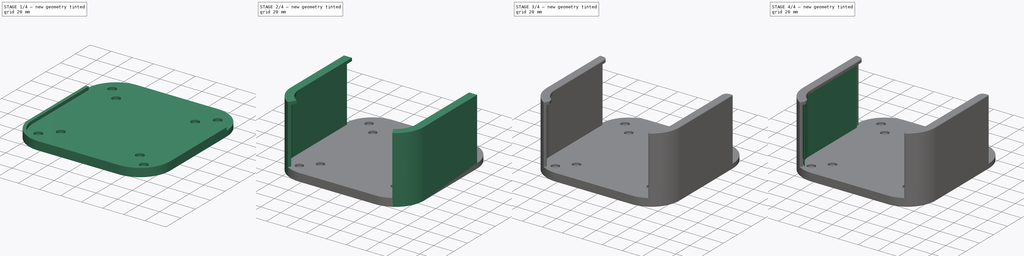
[diagram: build sequence overview — one tinted view per stage of 4, left to right]
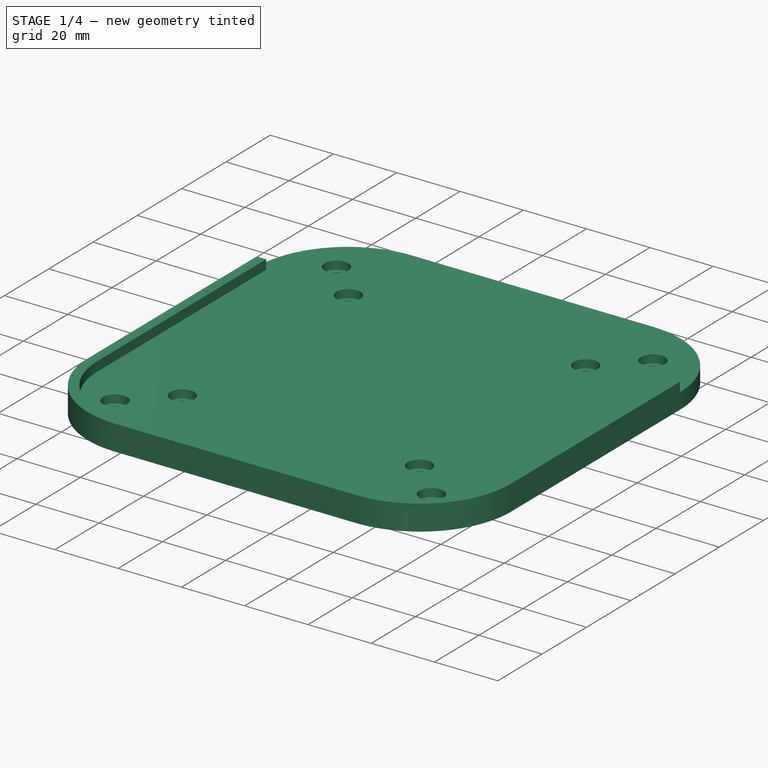
[diagram: stage 1 of 4 — iso view after this stage's code; geometry added in this stage tinted green]
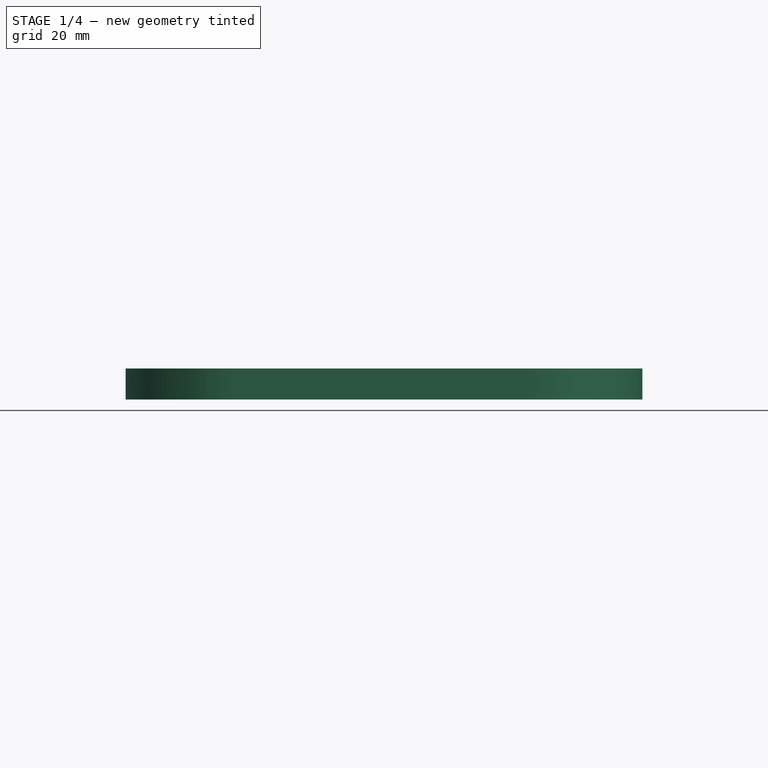
[diagram: stage 1 of 4 — front view after this stage's code; geometry added in this stage tinted green]
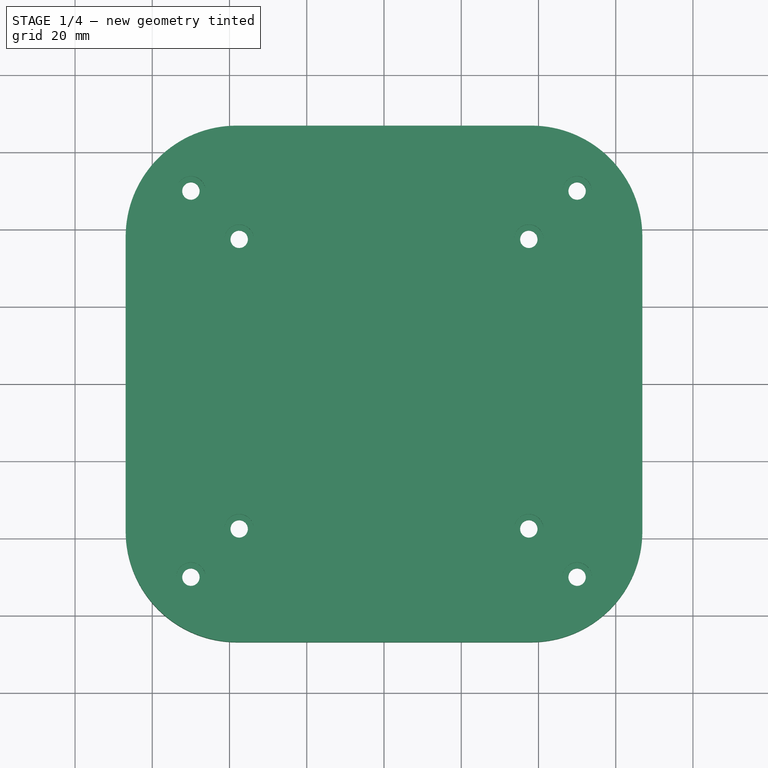
[diagram: stage 1 of 4 — top view after this stage's code; geometry added in this stage tinted green]
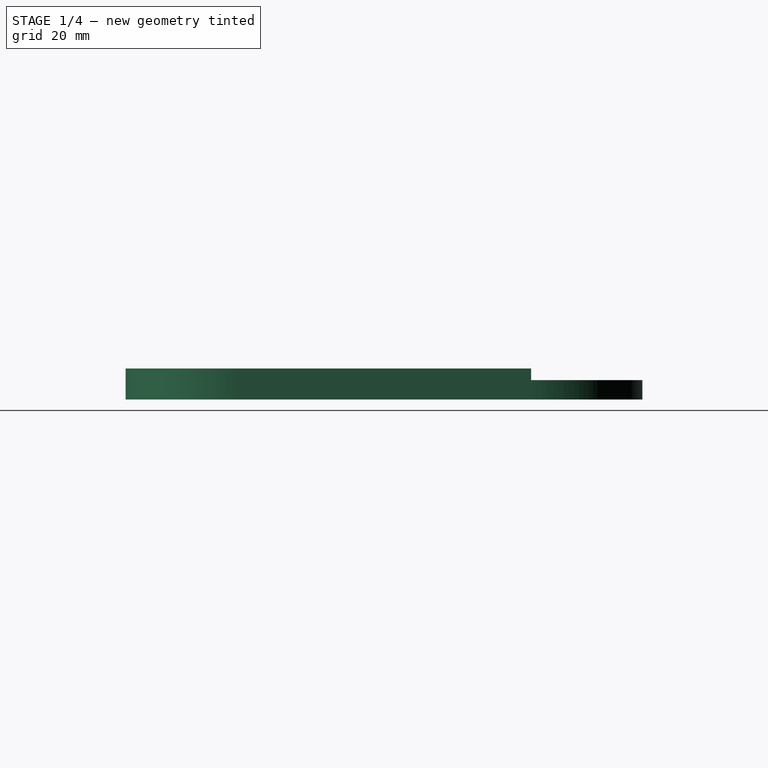
[diagram: stage 1 of 4 — right view after this stage's code; geometry added in this stage tinted green]
FCSTD DOCUMENT  (FreeCAD 1.0R39109 (Git))
Label: m4 mini vesa 100 mount
License: All rights reserved
LicenseURL: http://en.wikipedia.org/wiki/All_rights_reserved
objects: Sketcher::SketchObject×7, PartDesign::Pad×6, PartDesign::Mirrored×2, PartDesign::Fillet×2, App::FeaturePython×1, PartDesign::SubShapeBinder×1, PartDesign::Hole×1, PartDesign::Chamfer×1, PartDesign::Body×1
note: 50 computed .brp shape members not serialized (recipe doc carries the construction recipe); baked Part::Feature solids carry a one-line shape summary decoded from their .brp

FEATURE [App::FeaturePython] dd  # WARN: FeaturePython — macro-defined, semantics opaque (R4)
  BaseFloor = 5
  BaseWallHeight = 8
  BoxRadius = 25.4
  BoxWidth = 127
  ButtonDiameter = 11
  ButtonDistance = 67
  DynamicData = Created with DynamicData (v2.68) workbench. | This is a simple container object built | for holding custom properties.
  FanShroudHeight = 15
  FrictionFit = 0
  Fudge = 0.4
  HexSize = 5
  HexSpacing = 5
  HexThickness = 1.6
  MeshThickness = 0.5
  MiniHeight = 43
  RetainerThickness = 2
  RiserAngle = 0
  RiserHeight = 0
  RiserOuter = 114
  RiserTop = 97
  TopHeight = 12
  TopThickness = 1.6
  Wall = 3
  expr: HexThickness = TopThickness
FEATURE [Sketcher::SketchObject] Sketch005  label="master"
  ArcFitTolerance = 1e-06
  FullyConstrained = true
  MakeInternals = false
  MapMode = 5
  expr: Constraints[1] = dd.RiserOuter
  expr: Constraints[41] = dd.Wall
  expr: Constraints[5] = dd.ButtonDistance
  expr: Constraints[6] = dd.ButtonDiameter
  expr: Constraints[79] = dd.Fudge
  expr: Constraints[80] = dd.Wall
  expr: Constraints[81] = dd.RiserTop
  expr: Constraints[83] = dd.BoxRadius
  expr: Constraints[84] = dd.BoxWidth
  sketch-geometry (36):
    g0: Circle CenterX=2.8e-15 CenterY=3.4e-15 CenterZ=0 NormalX=0 NormalY=0 NormalZ=1 AngleXU=0 Radius=57
    g1: Circle CenterX=47.3762 CenterY=47.3762 CenterZ=0 NormalX=0 NormalY=0 NormalZ=1 AngleXU=0 Radius=5.5
    g2: LineSegment [constr] StartX=47.3762 StartY=47.3762 StartZ=0 EndX=2.8e-15 EndY=3.4e-15 EndZ=0
    g3: LineSegment StartX=-63.5 StartY=38.1 StartZ=0 EndX=-63.5 EndY=-38.1 EndZ=0
    g4: LineSegment StartX=-38.1 StartY=-63.5 StartZ=0 EndX=38.1 EndY=-63.5 EndZ=0
    g5: LineSegment StartX=63.5 StartY=-38.1 StartZ=0 EndX=63.5 EndY=38.1 EndZ=0
    g6: LineSegment StartX=38.1 StartY=63.5 StartZ=0 EndX=-38.1 EndY=63.5 EndZ=0
    g7: ArcOfCircle CenterX=-38.1 CenterY=38.1 CenterZ=0 NormalX=0 NormalY=0 NormalZ=1 AngleXU=0 Radius=25.4 StartAngle=1.5708 EndAngle=3.14159
    g8: ArcOfCircle CenterX=-38.1 CenterY=-38.1 CenterZ=0 NormalX=0 NormalY=0 NormalZ=1 AngleXU=0 Radius=25.4 StartAngle=3.14159 EndAngle=4.71239
    g9: ArcOfCircle CenterX=38.1 CenterY=-38.1 CenterZ=0 NormalX=0 NormalY=0 NormalZ=1 AngleXU=0 Radius=25.4 StartAngle=4.71239 EndAngle=6.28319
    g10: ArcOfCircle CenterX=38.1 CenterY=38.1 CenterZ=0 NormalX=0 NormalY=0 NormalZ=1 AngleXU=0 Radius=25.4 StartAngle=0 EndAngle=1.5708
    g11: LineSegment StartX=-60.5 StartY=38.1 StartZ=0 EndX=-60.5 EndY=-38.1 EndZ=0
    g12: LineSegment StartX=-38.1 StartY=-60.5 StartZ=0 EndX=38.1 EndY=-60.5 EndZ=0
    g13: LineSegment StartX=60.5 StartY=-38.1 StartZ=0 EndX=60.5 EndY=38.1 EndZ=0
    g14: LineSegment StartX=38.1 StartY=60.5 StartZ=0 EndX=-38.1 EndY=60.5 EndZ=0
    g15: ArcOfCircle CenterX=-38.1 CenterY=38.1 CenterZ=0 NormalX=0 NormalY=0 NormalZ=1 AngleXU=0 Radius=22.4 StartAngle=1.5708 EndAngle=3.14159
    g16: ArcOfCircle CenterX=-38.1 CenterY=-38.1 CenterZ=0 NormalX=0 NormalY=0 NormalZ=1 AngleXU=0 Radius=22.4 StartAngle=3.14159 EndAngle=4.71239
    g17: ArcOfCircle CenterX=38.1 CenterY=-38.1 CenterZ=0 NormalX=0 NormalY=0 NormalZ=1 AngleXU=0 Radius=22.4 StartAngle=4.71239 EndAngle=6.28319
    g18: ArcOfCircle CenterX=38.1 CenterY=38.1 CenterZ=0 NormalX=0 NormalY=0 NormalZ=1 AngleXU=0 Radius=22.4 StartAngle=1e-16 EndAngle=1.5708
    g19: Circle CenterX=2.8e-15 CenterY=3.4e-15 CenterZ=0 NormalX=0 NormalY=0 NormalZ=1 AngleXU=0 Radius=48.5
    g20: LineSegment StartX=-60.1 StartY=38.1 StartZ=0 EndX=-60.1 EndY=-38.1 EndZ=0
    g21: LineSegment StartX=-38.1 StartY=-60.1 StartZ=0 EndX=38.1 EndY=-60.1 EndZ=0
    g22: LineSegment StartX=60.1 StartY=-38.1 StartZ=0 EndX=60.1 EndY=38.1 EndZ=0
    g23: LineSegment StartX=38.1 StartY=60.1 StartZ=0 EndX=-38.1 EndY=60.1 EndZ=0
    g24: ArcOfCircle CenterX=-38.1 CenterY=38.1 CenterZ=0 NormalX=0 NormalY=0 NormalZ=1 AngleXU=0 Radius=22 StartAngle=1.5708 EndAngle=3.14159
    g25: ArcOfCircle CenterX=-38.1 CenterY=-38.1 CenterZ=0 NormalX=0 NormalY=0 NormalZ=1 AngleXU=0 Radius=22 StartAngle=3.14159 EndAngle=4.71239
    g26: ArcOfCircle CenterX=38.1 CenterY=-38.1 CenterZ=0 NormalX=0 NormalY=0 NormalZ=1 AngleXU=0 Radius=22 StartAngle=4.71239 EndAngle=6.28319
    g27: ArcOfCircle CenterX=38.1 CenterY=38.1 CenterZ=0 NormalX=0 NormalY=0 NormalZ=1 AngleXU=0 Radius=22 StartAngle=1e-16 EndAngle=1.5708
    g28: LineSegment StartX=-57.1 StartY=38.1 StartZ=0 EndX=-57.1 EndY=-38.1 EndZ=0
    g29: LineSegment StartX=-38.1 StartY=-57.1 StartZ=0 EndX=38.1 EndY=-57.1 EndZ=0
    g30: LineSegment StartX=57.1 StartY=-38.1 StartZ=0 EndX=57.1 EndY=38.1 EndZ=0
    g31: LineSegment StartX=38.1 StartY=57.1 StartZ=0 EndX=-38.1 EndY=57.1 EndZ=0
    g32: ArcOfCircle CenterX=-38.1 CenterY=38.1 CenterZ=0 NormalX=0 NormalY=0 NormalZ=1 AngleXU=0 Radius=19 StartAngle=1.5708 EndAngle=3.14159
    g33: ArcOfCircle CenterX=-38.1 CenterY=-38.1 CenterZ=0 NormalX=0 NormalY=0 NormalZ=1 AngleXU=0 Radius=19 StartAngle=3.14159 EndAngle=4.71239
    g34: ArcOfCircle CenterX=38.1 CenterY=-38.1 CenterZ=0 NormalX=0 NormalY=0 NormalZ=1 AngleXU=0 Radius=19 StartAngle=4.71239 EndAngle=6.28319
    g35: ArcOfCircle CenterX=38.1 CenterY=38.1 CenterZ=0 NormalX=0 NormalY=0 NormalZ=1 AngleXU=0 Radius=19 StartAngle=0 EndAngle=1.5708
  constraints (85):
    c: Coincident(g0,g-1)
    c: Diameter(g0) = 114
    c: Coincident(g2,g1)
    c: Coincident(g2,g0)
    c: Angle(g-1,g2) = 0.785398
    c: Distance(g2) = 67
    c: Diameter(g1) = 11
    c: Tangent(g3,g7) = -1.5708
    c: Tangent(g3,g8) = -1.5708
    c: Tangent(g4,g8) = -1.5708
    c: Tangent(g4,g9) = -1.5708
    c: Tangent(g5,g9) = -1.5708
    c: Tangent(g5,g10) = -1.5708
    c: Tangent(g6,g10) = -1.5708
    c: Tangent(g6,g7) = -1.5708
    c: Vertical(g3)
    c: Vertical(g5)
    c: Horizontal(g4)
    c: Horizontal(g6)
    c: Equal(g7,g8)
    c: Equal(g8,g9)
    c: Equal(g9,g10)
    c: Symmetric(g8,g10,g0)
    c: Equal(g6,g3)
    c: Tangent(g11,g15) = -1.5708
    c: Tangent(g11,g16) = -1.5708
    c: Tangent(g12,g16) = -1.5708
    c: Tangent(g12,g17) = -1.5708
    c: Tangent(g13,g17) = -1.5708
    c: Tangent(g13,g18) = -1.5708
    c: Tangent(g14,g18) = -1.5708
    c: Tangent(g14,g15) = -1.5708
    c: Vertical(g11)
    c: Vertical(g13)
    c: Horizontal(g12)
    c: Horizontal(g14)
    c: Equal(g15,g16)
    c: Equal(g16,g17)
    c: Equal(g17,g18)
    c: Symmetric(g16,g18,g0)
    c: Equal(g14,g11)
    c: DistanceY(g14,g6) = 3
    c: Coincident(g19,g0)
    c: Tangent(g20,g24) = -1.5708
    c: Tangent(g20,g25) = -1.5708
    c: Tangent(g21,g25) = -1.5708
    c: Tangent(g21,g26) = -1.5708
    c: Tangent(g22,g26) = -1.5708
    c: Tangent(g22,g27) = -1.5708
    c: Tangent(g23,g27) = -1.5708
    c: Tangent(g23,g24) = -1.5708
    c: Vertical(g20)
    c: Vertical(g22)
    c: Horizontal(g21)
    c: Horizontal(g23)
    c: Equal(g24,g25)
    c: Equal(g25,g26)
    c: Equal(g26,g27)
    c: Symmetric(g27,g25,g0)
    c: Equal(g23,g20)
    c: Vertical(g23,g14)
    c: Tangent(g28,g32) = -1.5708
    c: Tangent(g28,g33) = -1.5708
    c: Tangent(g29,g33) = -1.5708
    c: Tangent(g29,g34) = -1.5708
    c: Tangent(g30,g34) = -1.5708
    c: Tangent(g30,g35) = -1.5708
    c: Tangent(g31,g35) = -1.5708
    c: Tangent(g31,g32) = -1.5708
    c: Vertical(g28)
    c: Vertical(g30)
    c: Horizontal(g29)
    c: Horizontal(g31)
    c: Equal(g32,g33)
    c: Equal(g33,g34)
    c: Equal(g34,g35)
    c: Symmetric(g33,g35,g0)
    c: Equal(g30,g31)
    c: Vertical(g31,g23)
    c: DistanceY(g23,g14) = 0.4
    c: DistanceY(g31,g23) = 3
    c: Diameter(g19) = 97
    c: Vertical(g14,g6)
    c: Radius(g7) = 25.4
    c: DistanceX(g3,g5) = 127
FEATURE [PartDesign::SubShapeBinder] Binder
  BindCopyOnChange = 0
  BindMode = 0
  ClaimChildren = false
  Context = -> Body [Binder.]
  Fuse = false
  MakeFace = true
  OffsetFill = false
  OffsetIntersection = false
  OffsetJoinType = 0
  OffsetOpenResult = false
  PartialLoad = false
  Refine = true
  Relative = true
  Support = -> [Sketch005]
  _Version = 2
FEATURE [Sketcher::SketchObject] Sketch
  ArcFitTolerance = 1e-06
  AttachmentSupport = -> [XY_Plane]
  ExternalGeometry = -> [Binder]
  FullyConstrained = true
  MakeInternals = false
  MapMode = 5
  expr: Constraints[22] = dd.Fudge + dd.Wall
  sketch-geometry (26):
    g0: LineSegment StartX=-66.9 StartY=38.1 StartZ=0 EndX=-66.9 EndY=-38.1 EndZ=0
    g1: LineSegment StartX=-38.1 StartY=-66.9 StartZ=0 EndX=38.1 EndY=-66.9 EndZ=0
    g2: LineSegment StartX=66.9 StartY=-38.1 StartZ=0 EndX=66.9 EndY=38.1 EndZ=0
    g3: LineSegment StartX=38.1 StartY=66.9 StartZ=0 EndX=-38.1 EndY=66.9 EndZ=0
    g4: ArcOfCircle CenterX=-38.1 CenterY=38.1 CenterZ=0 NormalX=0 NormalY=0 NormalZ=1 AngleXU=0 Radius=28.8 StartAngle=1.5708 EndAngle=3.14159
    g5: ArcOfCircle CenterX=-38.1 CenterY=-38.1 CenterZ=0 NormalX=0 NormalY=0 NormalZ=1 AngleXU=0 Radius=28.8 StartAngle=3.14159 EndAngle=4.71239
    g6: ArcOfCircle CenterX=38.1 CenterY=-38.1 CenterZ=0 NormalX=0 NormalY=0 NormalZ=1 AngleXU=0 Radius=28.8 StartAngle=4.71239 EndAngle=6.28319
    g7: ArcOfCircle CenterX=38.1 CenterY=38.1 CenterZ=0 NormalX=0 NormalY=0 NormalZ=1 AngleXU=0 Radius=28.8 StartAngle=-1.87e-14 EndAngle=1.5708
    g8: GeomPoint [constr] X=-66.9 Y=66.9 Z=0
    g9: GeomPoint [constr] X=66.9 Y=-66.9 Z=0
    g10: LineSegment [constr] StartX=-50 StartY=50 StartZ=0 EndX=-50 EndY=-50 EndZ=0
    g11: LineSegment [constr] StartX=-50 StartY=-50 StartZ=0 EndX=50 EndY=-50 EndZ=0
    g12: LineSegment [constr] StartX=50 StartY=-50 StartZ=0 EndX=50 EndY=50 EndZ=0
    g13: LineSegment [constr] StartX=50 StartY=50 StartZ=0 EndX=-50 EndY=50 EndZ=0
    g14: LineSegment [constr] StartX=-37.5 StartY=37.5 StartZ=0 EndX=-37.5 EndY=-37.5 EndZ=0
    g15: LineSegment [constr] StartX=-37.5 StartY=-37.5 StartZ=0 EndX=37.5 EndY=-37.5 EndZ=0
    g16: LineSegment [constr] StartX=37.5 StartY=-37.5 StartZ=0 EndX=37.5 EndY=37.5 EndZ=0
    g17: LineSegment [constr] StartX=37.5 StartY=37.5 StartZ=0 EndX=-37.5 EndY=37.5 EndZ=0
    g18: Circle CenterX=-37.5 CenterY=37.5 CenterZ=0 NormalX=0 NormalY=0 NormalZ=1 AngleXU=0 Radius=2
    g19: Circle CenterX=-50 CenterY=50 CenterZ=0 NormalX=0 NormalY=0 NormalZ=1 AngleXU=0 Radius=2
    g20: Circle CenterX=37.5 CenterY=37.5 CenterZ=0 NormalX=0 NormalY=0 NormalZ=1 AngleXU=0 Radius=2
    g21: Circle CenterX=50 CenterY=50 CenterZ=0 NormalX=0 NormalY=0 NormalZ=1 AngleXU=0 Radius=2
    g22: Circle CenterX=50 CenterY=-50 CenterZ=0 NormalX=0 NormalY=0 NormalZ=1 AngleXU=0 Radius=2
    g23: Circle CenterX=37.5 CenterY=-37.5 CenterZ=0 NormalX=0 NormalY=0 NormalZ=1 AngleXU=0 Radius=2
    g24: Circle CenterX=-37.5 CenterY=-37.5 CenterZ=0 NormalX=0 NormalY=0 NormalZ=1 AngleXU=0 Radius=2
    g25: Circle CenterX=-50 CenterY=-50 CenterZ=0 NormalX=0 NormalY=0 NormalZ=1 AngleXU=0 Radius=2
  constraints (55):
    c: Tangent(g0,g4) = -1.5708
    c: Tangent(g0,g5) = -1.5708
    c: Tangent(g1,g5) = -1.5708
    c: Tangent(g1,g6) = -1.5708
    c: Tangent(g2,g6) = -1.5708
    c: Tangent(g2,g7) = -1.5708
    c: Tangent(g3,g7) = -1.5708
    c: Tangent(g3,g4) = -1.5708
    c: Vertical(g0)
    c: Vertical(g2)
    c: Horizontal(g1)
    c: Horizontal(g3)
    c: Equal(g4,g5)
    c: Equal(g5,g6)
    c: Equal(g6,g7)
    c: PointOnObject(g8,g0)
    c: PointOnObject(g8,g3)
    c: PointOnObject(g9,g1)
    c: PointOnObject(g9,g2)
    c: Symmetric(g7,g5,g-1)
    c: Equal(g3,g0)
    c: Vertical(g-3,g3)
    c: DistanceY(g-3,g3) = 3.4
    c: Coincident(g10,g11)
    c: Coincident(g11,g12)
    c: Coincident(g12,g13)
    c: Coincident(g13,g10)
    c: Vertical(g10)
    c: Vertical(g12)
    c: Horizontal(g11)
    c: Horizontal(g13)
    c: Equal(g12,g11)
    c: Symmetric(g10,g12,g-1)
    c: DistanceX(g11,g11) = 100
    c: Coincident(g14,g15)
    c: Coincident(g15,g16)
    c: Coincident(g16,g17)
    c: Coincident(g17,g14)
    c: Vertical(g14)
    c: Vertical(g16)
    c: Horizontal(g15)
    c: Horizontal(g17)
    c: Equal(g16,g17)
    c: Symmetric(g16,g14,g-1)
    c: DistanceX(g17,g17) = 75
    c: Coincident(g18,g14)
    c: Coincident(g19,g10)
    c: Coincident(g20,g16)
    c: Coincident(g21,g12)
    c: Coincident(g22,g11)
    c: Coincident(g23,g15)
    c: Coincident(g24,g14)
    c: Coincident(g25,g10)
    c: Equal(g18, g19-g25) x7
    c: Diameter(g18) = 4
FEATURE [PartDesign::Pad] Pad
  Direction = (0,0,1)
  Length = 5
  Length2 = 10
  Profile = -> Sketch
  ReferenceAxis = -> Sketch [N_Axis]
  Refine = true
  Suppressed = false
  Type = 0
  expr: Length = dd.BaseFloor
FEATURE [PartDesign::Hole] Hole
  BaseFeature = -> Pad
  CustomThreadClearance = 0
  Depth = 25
  DepthType = 0
  Diameter = 4.5
  DrillForDepth = false
  DrillPoint = 1
  DrillPointAngle = 118
  HoleCutCountersinkAngle = 90
  HoleCutCustomValues = false
  HoleCutDepth = 2.6
  HoleCutDiameter = 7.6
  HoleCutType = 1
  ModelThread = false
  Profile = -> Pad [Edge45,Edge48,Edge42,Edge39,Edge30,Edge27,Edge33,Edge36]
  Refine = true
  Suppressed = false
  Tapered = false
  TaperedAngle = 90
  ThreadClass = 0
  ThreadDepth = 25
  ThreadDepthType = 0
  ThreadDirection = 0
  ThreadFit = 0
  ThreadSize = 11
  ThreadType = 1
  Threaded = false
  UseCustomThreadClearance = false
FEATURE [Sketcher::SketchObject] Sketch006
  ArcFitTolerance = 1e-06
  AttachmentSupport = -> [Hole]
  ExternalGeometry = -> [Hole]
  FullyConstrained = true
  MakeInternals = false
  MapMode = 5
  Placement = pos=(0,0,5) rot=(0,0,1;0rad)
  expr: Constraints[43] = dd.Wall
  sketch-geometry (22):
    g0: LineSegment StartX=66.9 StartY=-38.1 StartZ=0 EndX=66.9 EndY=38.1 EndZ=0
    g1: LineSegment [constr] StartX=38.1 StartY=66.9 StartZ=0 EndX=-38.1 EndY=66.9 EndZ=0
    g2: LineSegment StartX=-66.9 StartY=38.1 StartZ=0 EndX=-66.9 EndY=-38.1 EndZ=0
    g3: LineSegment StartX=-38.1 StartY=-66.9 StartZ=0 EndX=38.1 EndY=-66.9 EndZ=0
    g4: ArcOfCircle CenterX=38.1 CenterY=-38.1 CenterZ=0 NormalX=0 NormalY=0 NormalZ=1 AngleXU=0 Radius=28.8 StartAngle=4.71239 EndAngle=6.28319
    g5: ArcOfCircle [constr] CenterX=38.1 CenterY=38.1 CenterZ=0 NormalX=0 NormalY=0 NormalZ=1 AngleXU=0 Radius=28.8 StartAngle=0 EndAngle=1.5708
    g6: ArcOfCircle [constr] CenterX=-38.1 CenterY=38.1 CenterZ=0 NormalX=0 NormalY=0 NormalZ=1 AngleXU=0 Radius=28.8 StartAngle=1.5708 EndAngle=3.14159
    g7: ArcOfCircle CenterX=-38.1 CenterY=-38.1 CenterZ=0 NormalX=0 NormalY=0 NormalZ=1 AngleXU=0 Radius=28.8 StartAngle=3.14159 EndAngle=4.71239
    g8: GeomPoint [constr] X=66.9 Y=-66.9 Z=0
    g9: GeomPoint [constr] X=-66.9 Y=66.9 Z=0
    g10: LineSegment StartX=63.9 StartY=-38.1 StartZ=0 EndX=63.9 EndY=38.1 EndZ=0
    g11: LineSegment [constr] StartX=38.1 StartY=63.9 StartZ=0 EndX=-38.1 EndY=63.9 EndZ=0
    g12: LineSegment StartX=-63.9 StartY=38.1 StartZ=0 EndX=-63.9 EndY=-38.1 EndZ=0
    g13: LineSegment StartX=-38.1 StartY=-63.9 StartZ=0 EndX=38.1 EndY=-63.9 EndZ=0
    g14: ArcOfCircle CenterX=38.1 CenterY=-38.1 CenterZ=0 NormalX=0 NormalY=0 NormalZ=1 AngleXU=0 Radius=25.8 StartAngle=4.71239 EndAngle=6.28319
    g15: ArcOfCircle [constr] CenterX=38.1 CenterY=38.1 CenterZ=0 NormalX=0 NormalY=0 NormalZ=1 AngleXU=0 Radius=25.8 StartAngle=0 EndAngle=1.5708
    g16: ArcOfCircle [constr] CenterX=-38.1 CenterY=38.1 CenterZ=0 NormalX=0 NormalY=0 NormalZ=1 AngleXU=0 Radius=25.8 StartAngle=1.5708 EndAngle=3.14159
    g17: ArcOfCircle CenterX=-38.1 CenterY=-38.1 CenterZ=0 NormalX=0 NormalY=0 NormalZ=1 AngleXU=0 Radius=25.8 StartAngle=3.14159 EndAngle=4.71239
    g18: GeomPoint [constr] X=63.9 Y=-63.9 Z=0
    g19: GeomPoint [constr] X=-63.9 Y=63.9 Z=0
    g20: LineSegment StartX=-66.9 StartY=38.1 StartZ=0 EndX=-63.9 EndY=38.1 EndZ=0
    g21: LineSegment StartX=63.9 StartY=38.1 StartZ=0 EndX=66.9 EndY=38.1 EndZ=0
  constraints (49):
    c: Tangent(g0,g4) = -1.5708
    c: Tangent(g0,g5) = -1.5708
    c: Tangent(g1,g5) = -1.5708
    c: Tangent(g1,g6) = -1.5708
    c: Tangent(g2,g6) = -1.5708
    c: Tangent(g2,g7) = -1.5708
    c: Tangent(g3,g7) = -1.5708
    c: Tangent(g3,g4) = -1.5708
    c: Vertical(g0)
    c: Vertical(g2)
    c: Horizontal(g1)
    c: Horizontal(g3)
    c: Equal(g4,g5)
    c: Equal(g5,g6)
    c: Equal(g6,g7)
    c: PointOnObject(g8,g0)
    c: PointOnObject(g8,g3)
    c: PointOnObject(g9,g1)
    c: PointOnObject(g9,g2)
    c: Symmetric(g5,g7,g-1)
    c: Equal(g1,g2)
    c: Tangent(g10,g14) = -1.5708
    c: Tangent(g10,g15) = -1.5708
    c: Tangent(g11,g15) = -1.5708
    c: Tangent(g11,g16) = -1.5708
    c: Tangent(g12,g16) = -1.5708
    c: Tangent(g12,g17) = -1.5708
    c: Tangent(g13,g17) = -1.5708
    c: Tangent(g13,g14) = -1.5708
    c: Vertical(g10)
    c: Vertical(g12)
    c: Horizontal(g11)
    c: Horizontal(g13)
    c: Equal(g14,g15)
    c: Equal(g15,g16)
    c: Equal(g16,g17)
    c: PointOnObject(g18,g10)
    c: PointOnObject(g18,g13)
    c: PointOnObject(g19,g11)
    c: PointOnObject(g19,g12)
    c: Equal(g11,g12)
    c: Symmetric(g16,g14,g-1)
    c: Vertical(g11,g1)
    c: DistanceX(g2,g12) = 3
    c: Coincident(g20,g2)
    c: Coincident(g20,g12)
    c: Coincident(g21,g10)
    c: Coincident(g21,g0)
    c: Coincident(g2,g-3)
FEATURE [PartDesign::Pad] Pad001
  BaseFeature = -> Hole
  Direction = (0,0,1)
  Length = 3
  Length2 = 10
  Profile = -> Sketch006
  ReferenceAxis = -> Sketch006 [N_Axis]
  Refine = true
  Suppressed = false
  Type = 0
  expr: Length = dd.Wall
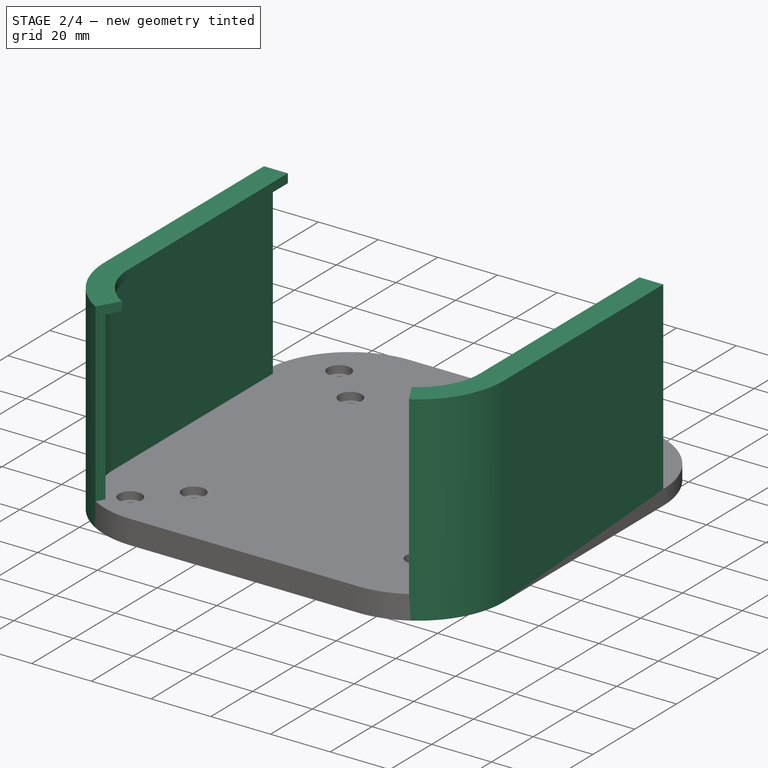
[diagram: stage 2 of 4 — iso view after this stage's code; geometry added in this stage tinted green]
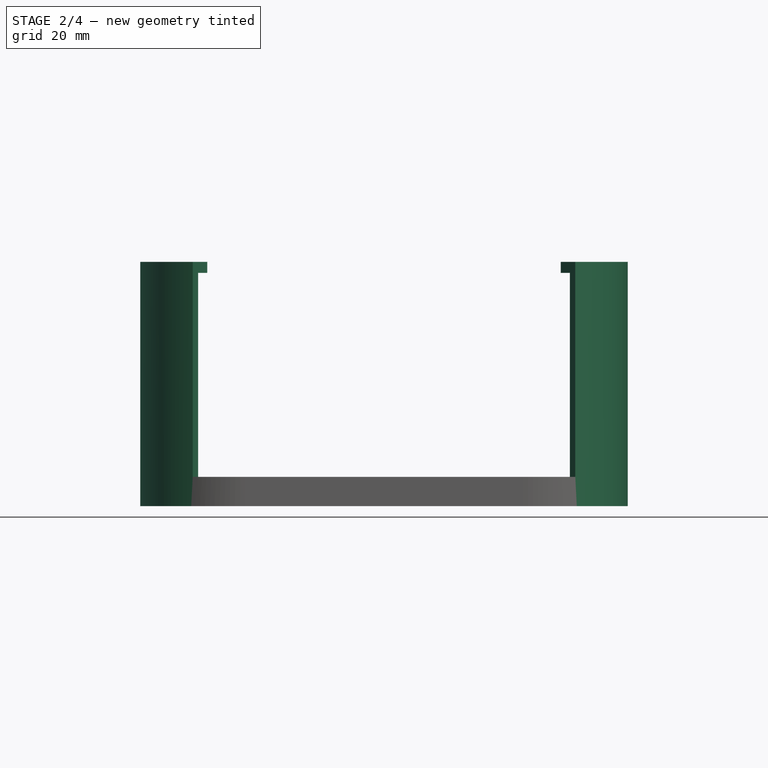
[diagram: stage 2 of 4 — front view after this stage's code; geometry added in this stage tinted green]
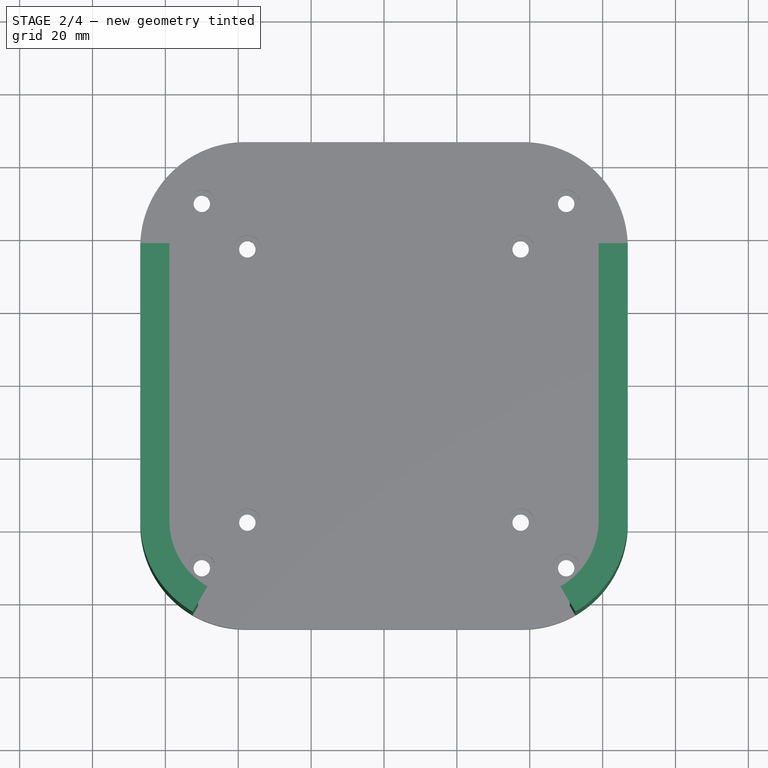
[diagram: stage 2 of 4 — top view after this stage's code; geometry added in this stage tinted green]
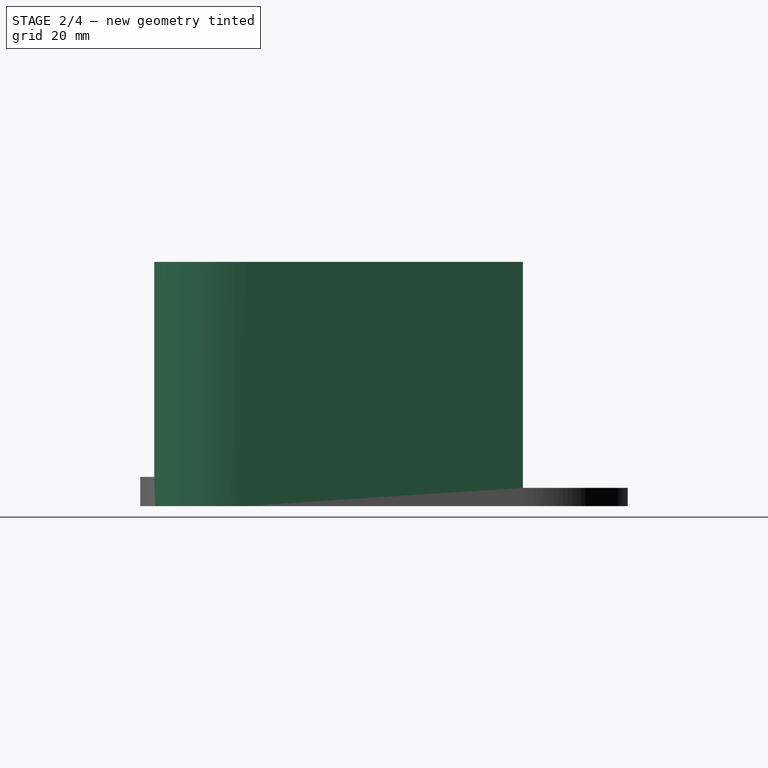
[diagram: stage 2 of 4 — right view after this stage's code; geometry added in this stage tinted green]
FEATURE [Sketcher::SketchObject] Sketch007
  ArcFitTolerance = 1e-06
  AttachmentSupport = -> [Pad001]
  ExternalGeometry = -> [Pad001]
  FullyConstrained = true
  MakeInternals = false
  MapMode = 5
  Placement = pos=(0,0,8) rot=(0,0,1;0rad)
  sketch-geometry (6):
    g0: LineSegment StartX=-63.9 StartY=38.1 StartZ=0 EndX=-66.9 EndY=38.1 EndZ=0
    g1: LineSegment StartX=-66.9 StartY=38.1 StartZ=0 EndX=-66.9 EndY=-38.1 EndZ=0
    g2: ArcOfCircle CenterX=-38.1 CenterY=-38.1 CenterZ=0 NormalX=0 NormalY=0 NormalZ=1 AngleXU=0 Radius=28.8 StartAngle=3.14159 EndAngle=4.18879
    g3: LineSegment StartX=-52.5 StartY=-63.0415 StartZ=0 EndX=-51 EndY=-60.4435 EndZ=0
    g4: ArcOfCircle CenterX=-38.1 CenterY=-38.1 CenterZ=0 NormalX=0 NormalY=0 NormalZ=1 AngleXU=0 Radius=25.8 StartAngle=3.14159 EndAngle=4.18879
    g5: LineSegment StartX=-63.9 StartY=-38.1 StartZ=0 EndX=-63.9 EndY=38.1 EndZ=0
  constraints (12):
    c: Coincident(g-3,g0)
    c: Coincident(g0,g-3)
    c: Coincident(g0,g1)
    c: Coincident(g1,g-4)
    c: Tangent(g1,g2) = -1.5708
    c: PointOnObject(g2,g-4)
    c: Perpendicular(g2,g3) = 1.5708
    c: Perpendicular(g3,g4) = 4.71239
    c: Coincident(g4,g-5)
    c: Tangent(g4,g5) = 1.5708
    c: Coincident(g5,g0)
    c: Angle(g3,g-1) = 2.0944
FEATURE [PartDesign::Pad] Pad002
  BaseFeature = -> Pad001
  Direction = (0,0,1)
  Length = 56
  Length2 = 10
  Profile = -> Sketch007
  ReferenceAxis = -> Sketch007 [N_Axis]
  Refine = true
  Suppressed = false
  Type = 0
  expr: Length = dd.MiniHeight + dd.FanShroudHeight - dd.Wall + 1
FEATURE [Sketcher::SketchObject] Sketch008
  ArcFitTolerance = 1e-06
  AttachmentSupport = -> [Pad002]
  ExternalGeometry = -> [Pad002]
  FullyConstrained = true
  MakeInternals = false
  MapMode = 5
  Placement = pos=(0,0,64) rot=(0,0,1;0rad)
  sketch-geometry (6):
    g0: LineSegment StartX=-58.9 StartY=38.1 StartZ=0 EndX=-58.9 EndY=-38.1 EndZ=0
    g1: ArcOfCircle CenterX=-38.1 CenterY=-38.1 CenterZ=0 NormalX=0 NormalY=0 NormalZ=1 AngleXU=0 Radius=20.8 StartAngle=3.14159 EndAngle=4.18879
    g2: LineSegment StartX=-48.5 StartY=-56.1133 StartZ=0 EndX=-52.5 EndY=-63.0415 EndZ=0
    g3: ArcOfCircle CenterX=-38.1 CenterY=-38.1 CenterZ=0 NormalX=0 NormalY=0 NormalZ=1 AngleXU=0 Radius=28.8 StartAngle=3.14159 EndAngle=4.18879
    g4: LineSegment StartX=-66.9 StartY=-38.1 StartZ=0 EndX=-66.9 EndY=38.1 EndZ=0
    g5: LineSegment StartX=-58.9 StartY=38.1 StartZ=0 EndX=-66.9 EndY=38.1 EndZ=0
  constraints (15):
    c: Vertical(g0)
    c: Tangent(g0,g1) = -1.5708
    c: Perpendicular(g2,g3) = 1.5708
    c: Coincident(g3,g-3)
    c: Equal(g3,g-3)
    c: Coincident(g2,g-3)
    c: Coincident(g1,g2)
    c: Coincident(g1,g3)
    c: Coincident(g3,g4)
    c: Coincident(g5,g0)
    c: Coincident(g5,g4)
    c: Horizontal(g5)
    c: DistanceX(g5,g5) = 8
    c: Vertical(g4)
    c: PointOnObject(g4,g-5)
FEATURE [PartDesign::Pad] Pad003
  BaseFeature = -> Pad002
  Direction = (0,0,1)
  Length = 3
  Length2 = 10
  Profile = -> Sketch008
  ReferenceAxis = -> Sketch008 [N_Axis]
  Refine = true
  Suppressed = false
  Type = 0
  expr: Length = dd.Wall
FEATURE [PartDesign::Mirrored] Mirrored
  BaseFeature = -> Pad003
  MirrorPlane = -> Sketch008 [V_Axis]
  Originals = -> [Pad003,Pad002]
  Refine = true
  Suppressed = false
  TransformMode = 0
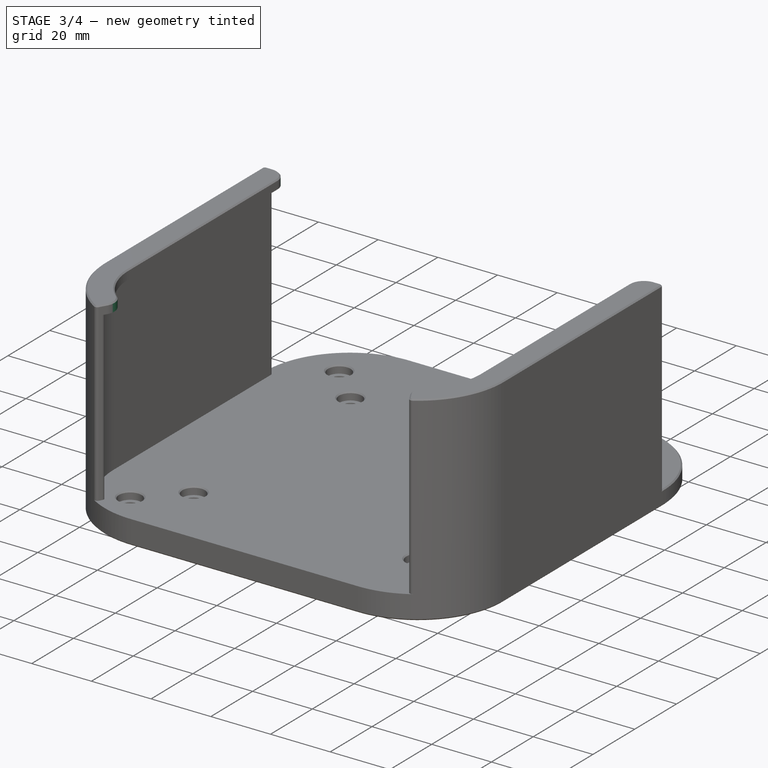
[diagram: stage 3 of 4 — iso view after this stage's code; geometry added in this stage tinted green]
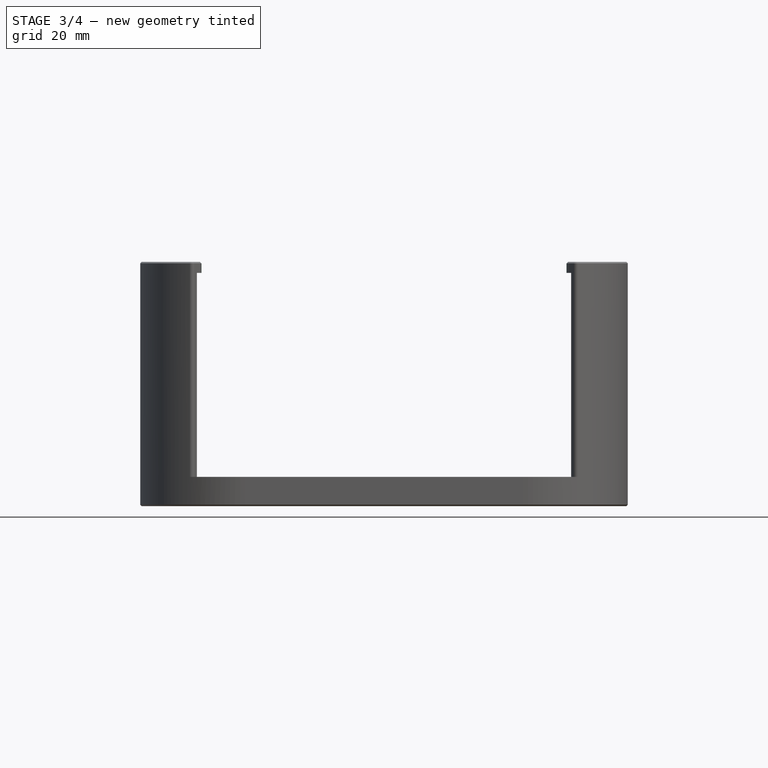
[diagram: stage 3 of 4 — front view after this stage's code; geometry added in this stage tinted green]
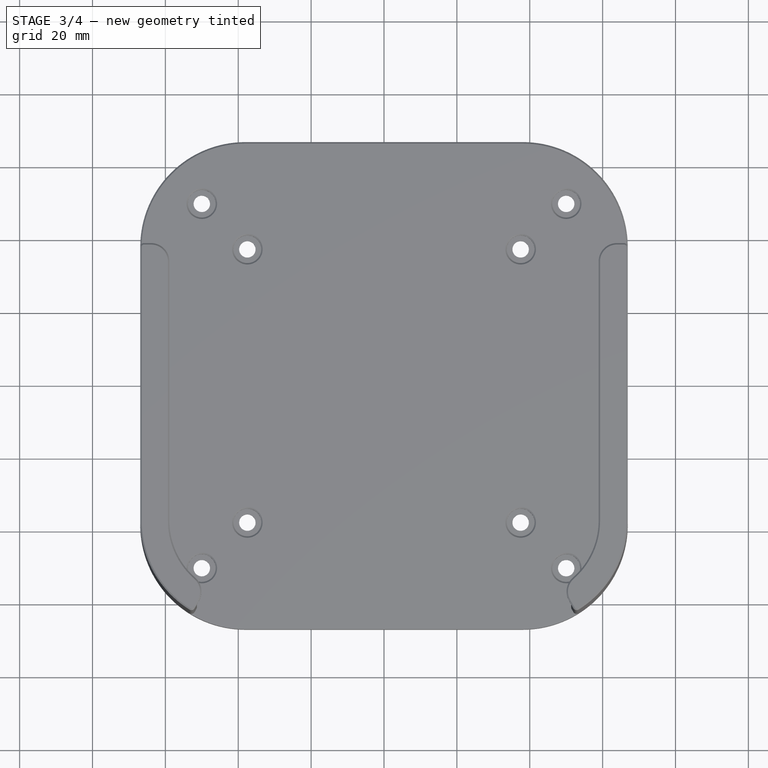
[diagram: stage 3 of 4 — top view after this stage's code; geometry added in this stage tinted green]
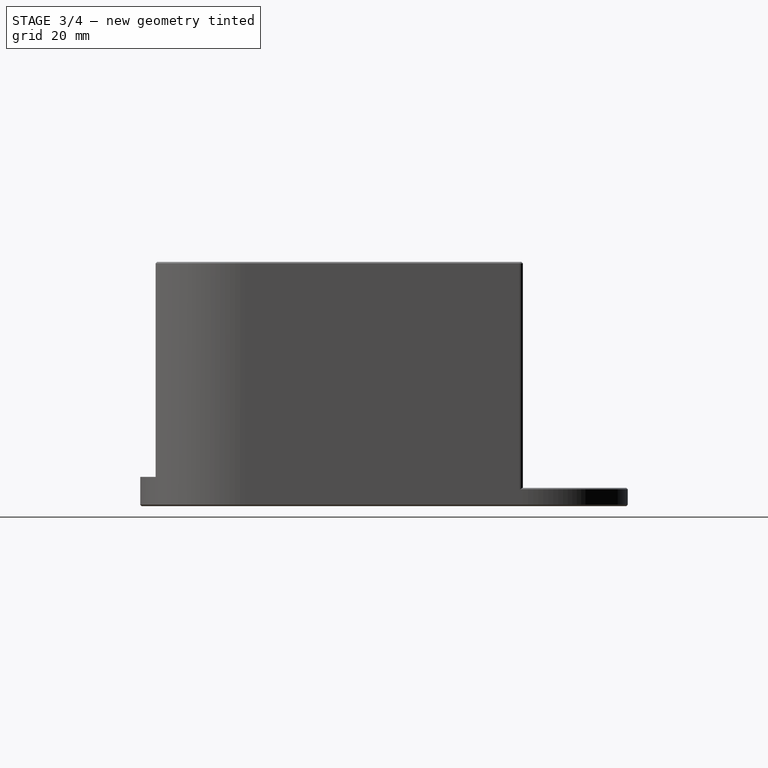
[diagram: stage 3 of 4 — right view after this stage's code; geometry added in this stage tinted green]
FEATURE [PartDesign::Fillet] Fillet
  Base = -> Mirrored [Edge67,Edge114,Edge15,Edge7]
  BaseFeature = -> Mirrored
  Radius = 5
  Refine = true
  SupportTransform = false
  Suppressed = false
  UseAllEdges = false
FEATURE [PartDesign::Fillet] Fillet001
  Base = -> Fillet [Edge72,Edge30,Edge25,Edge23,Edge92,Edge66,Edge68]
  BaseFeature = -> Fillet
  Radius = 1
  Refine = true
  SupportTransform = false
  Suppressed = false
  UseAllEdges = false
FEATURE [PartDesign::Chamfer] Chamfer
  Angle = 45
  Base = -> Fillet001 [Edge62,Edge61,Edge58,Edge57,Edge60,Edge59,Edge63,Edge64,Edge51,Face41,Face14,Face44]
  BaseFeature = -> Fillet001
  ChamferType = 0
  FlipDirection = false
  Refine = true
  Size = 0.4
  Size2 = 1
  SupportTransform = false
  Suppressed = false
  UseAllEdges = false
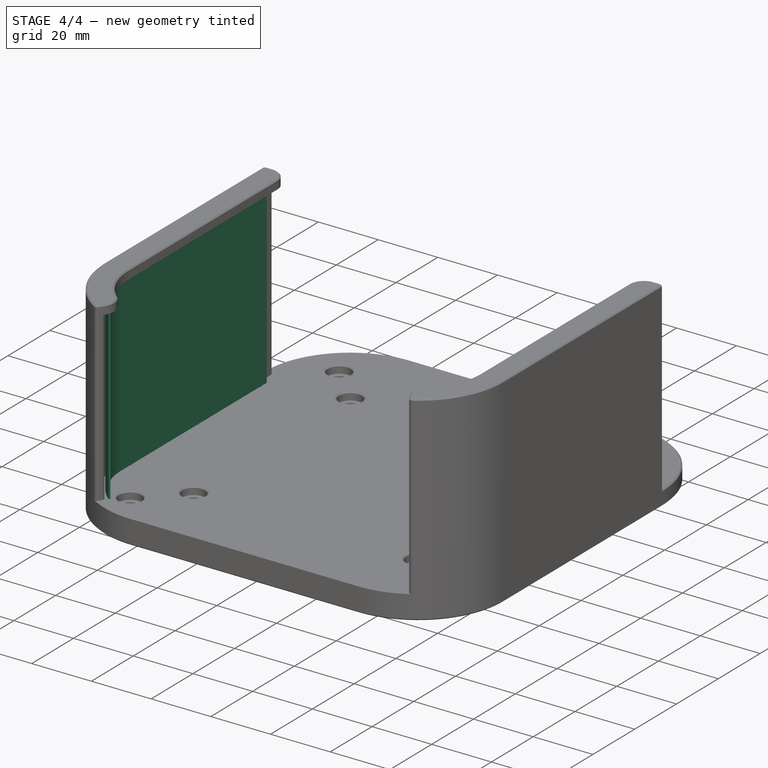
[diagram: stage 4 of 4 — iso view after this stage's code; geometry added in this stage tinted green]
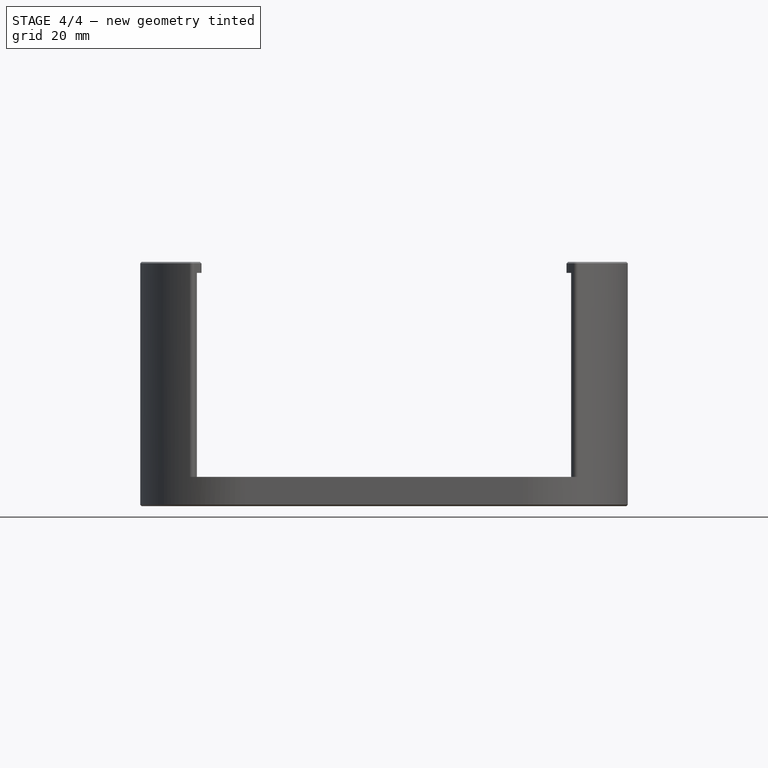
[diagram: stage 4 of 4 — front view after this stage's code; geometry added in this stage tinted green]
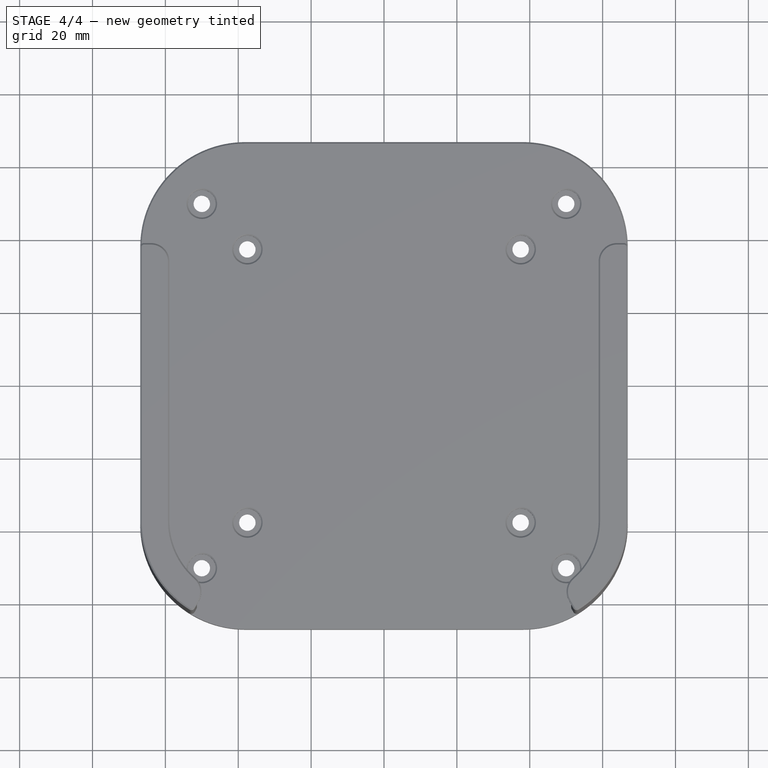
[diagram: stage 4 of 4 — top view after this stage's code; geometry added in this stage tinted green]
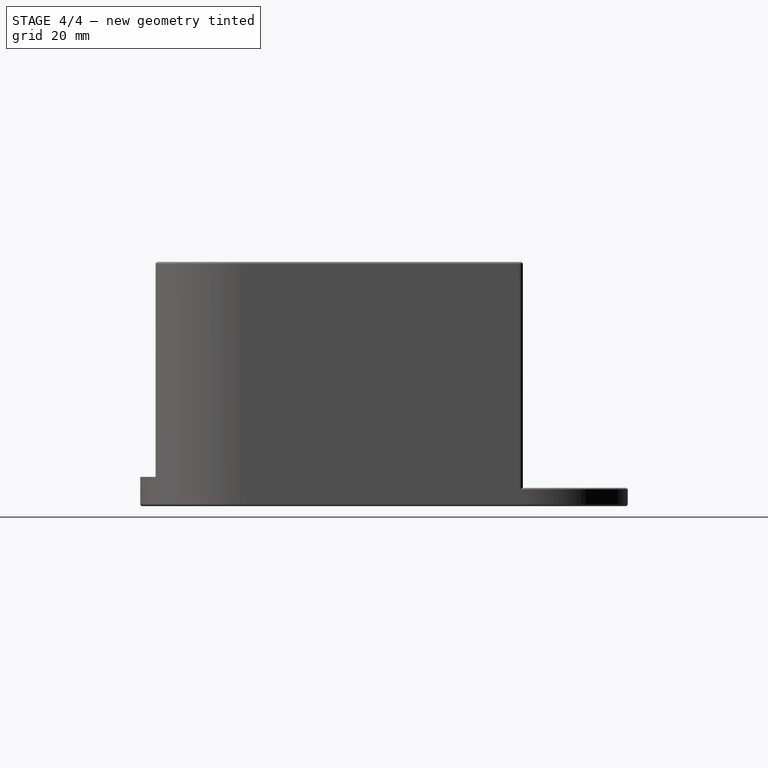
[diagram: stage 4 of 4 — right view after this stage's code; geometry added in this stage tinted green]
FEATURE [Sketcher::SketchObject] Sketch011
  ArcFitTolerance = 1e-06
  AttachmentSupport = -> [Chamfer]
  FullyConstrained = false
  MakeInternals = false
  MapMode = 5
  Placement = pos=(0,0,5) rot=(0,0,1;0rad)
  sketch-geometry (4):
    g0: Circle CenterX=-61.8565 CenterY=29.5311 CenterZ=0 NormalX=0 NormalY=0 NormalZ=1 AngleXU=0 Radius=0.25
    g1: Circle CenterX=-61.8565 CenterY=-0.788489 CenterZ=0 NormalX=0 NormalY=0 NormalZ=1 AngleXU=0 Radius=0.25
    g2: Circle CenterX=-61.8565 CenterY=-32.9484 CenterZ=0 NormalX=0 NormalY=0 NormalZ=1 AngleXU=0 Radius=0.25
    g3: Circle CenterX=-55.3562 CenterY=-53.0348 CenterZ=0 NormalX=0 NormalY=0 NormalZ=1 AngleXU=0 Radius=0.25
  constraints (6):
    c: Equal(g0,g1)
    c: Equal(g0,g2)
    c: Equal(g0,g3)
    c: Diameter(g0) = 0.5
    c: Vertical(g0,g1)
    c: Vertical(g1,g2)
FEATURE [PartDesign::Pad] Pad004  label="support posts"
  BaseFeature = -> Chamfer
  Direction = (0,0,1)
  Length = 10
  Length2 = 10
  Profile = -> Sketch011
  ReferenceAxis = -> Sketch011 [N_Axis]
  Refine = true
  Suppressed = false
  Type = 2
FEATURE [Sketcher::SketchObject] Sketch012
  ArcFitTolerance = 1e-06
  AttachmentOffset = pos=(0,0,0.2) rot=(0,0,1;0rad)
  AttachmentSupport = -> [Pad004]
  FullyConstrained = false
  MakeInternals = false
  MapMode = 5
  Placement = pos=(0,0,5.2) rot=(0,0,1;0rad)
  sketch-geometry (6):
    g0: LineSegment StartX=-62.1395 StartY=31.9126 StartZ=0 EndX=-61.6395 EndY=31.9126 EndZ=0
    g1: LineSegment StartX=-61.6395 StartY=31.9126 StartZ=0 EndX=-61.6395 EndY=-37.6217 EndZ=0
    g2: ArcOfCircle CenterX=-40.1152 CenterY=-37.6217 CenterZ=0 NormalX=0 NormalY=0 NormalZ=1 AngleXU=0 Radius=21.5243 StartAngle=3.14159 EndAngle=4.04229
    g3: LineSegment StartX=-53.4831 StartY=-54.4916 StartZ=0 EndX=-53.7937 EndY=-54.8835 EndZ=0
    g4: ArcOfCircle CenterX=-40.1152 CenterY=-37.6217 CenterZ=0 NormalX=0 NormalY=0 NormalZ=1 AngleXU=0 Radius=22.0243 StartAngle=3.14159 EndAngle=4.04229
    g5: LineSegment StartX=-62.1395 StartY=-37.6217 StartZ=0 EndX=-62.1395 EndY=31.9126 EndZ=0
  constraints (12):
    c: Horizontal(g0)
    c: Coincident(g0,g1)
    c: Vertical(g1)
    c: Tangent(g1,g2) = -1.5708
    c: Coincident(g2,g3)
    c: Perpendicular(g3,g4) = 1.5708
    c: Coincident(g4,g5)
    c: Coincident(g5,g0)
    c: Vertical(g5)
    c: Coincident(g2,g4)
    c: Horizontal(g4,g1)
    c: DistanceX(g0,g0) = 0.5
FEATURE [PartDesign::Pad] Pad005  label="support edge"
  BaseFeature = -> Pad004
  Direction = (0,0,1)
  Length = 58.6
  Length2 = 10
  Profile = -> Sketch012
  ReferenceAxis = -> Sketch012 [N_Axis]
  Refine = true
  Suppressed = false
  Type = 0
FEATURE [PartDesign::Mirrored] Mirrored001  label="support mirror"
  BaseFeature = -> Pad005
  MirrorPlane = -> Sketch011 [V_Axis]
  Originals = -> [Pad004,Pad005]
  Refine = true
  Suppressed = false
  TransformMode = 0
FEATURE [PartDesign::Body] Body
  AllowCompound = false
  Group = -> [Binder,Sketch,Pad,Hole,Sketch006,Pad001,Sketch007,Pad002,Sketch008,Pad003,Mirrored,Fillet,Fillet001,Chamfer,Sketch011,Sketch012,Pad004,Pad005,Mirrored001]
  Origin = -> Origin
  Tip = -> Mirrored001
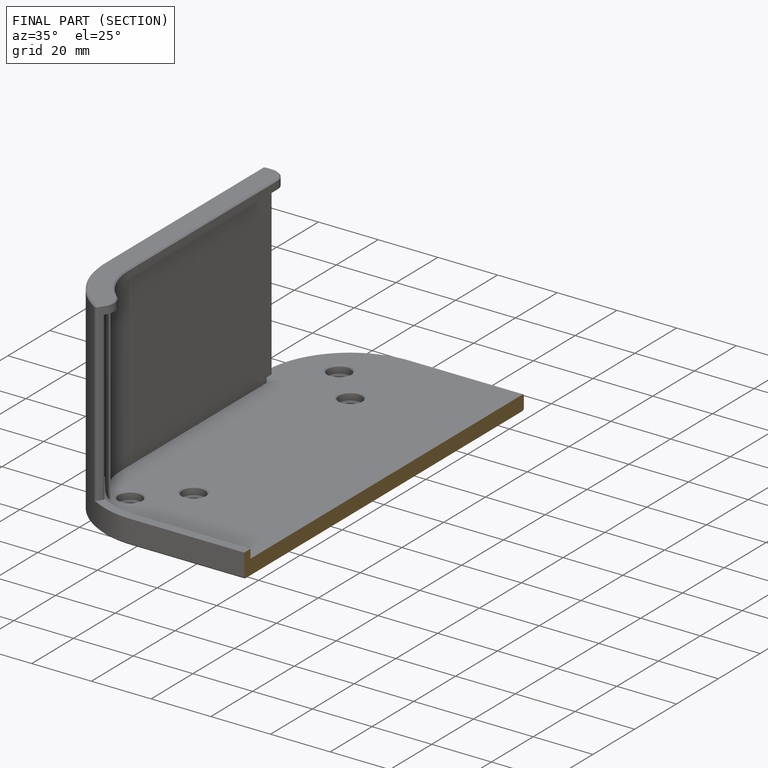
[diagram: finished part — half-section view (interior)]
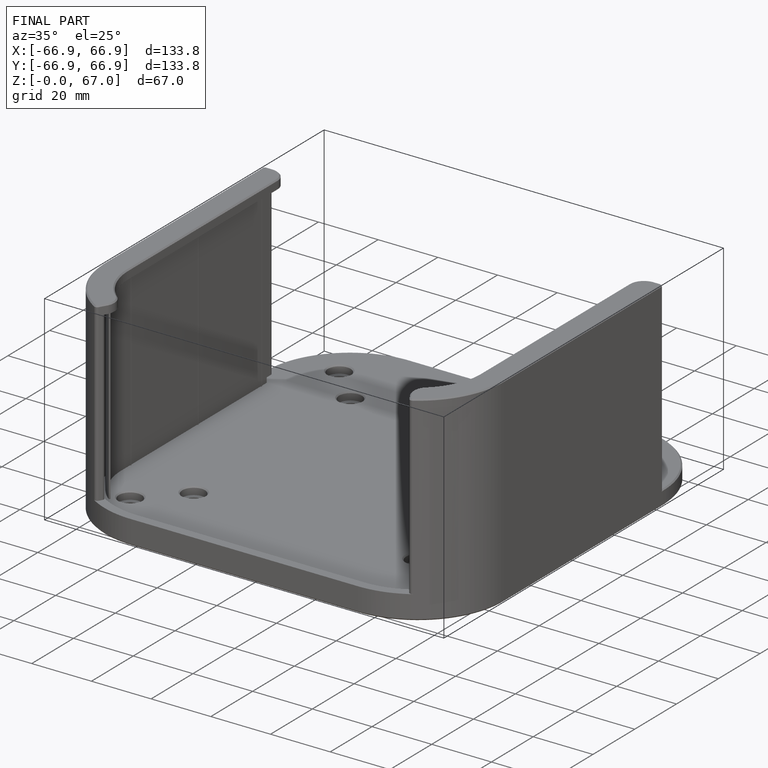
[diagram: finished part — iso view with bounding-box wireframe]
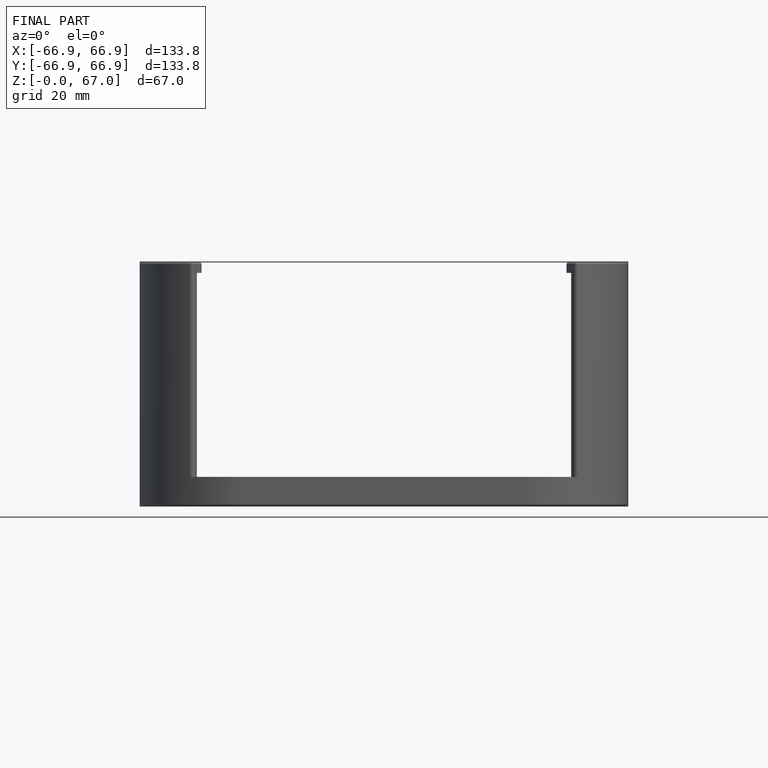
[diagram: finished part — front view with bounding-box wireframe]
